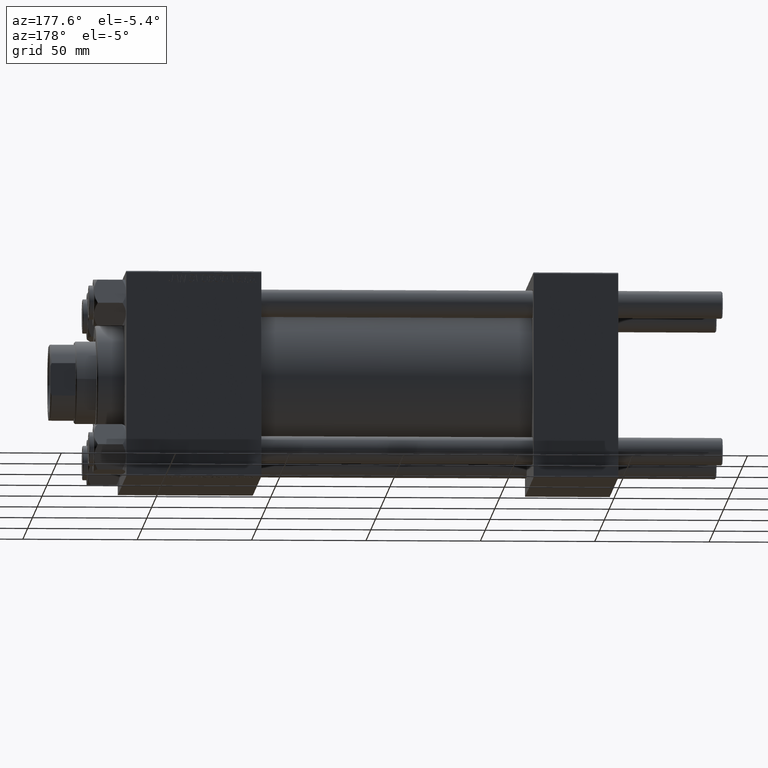
[diagram: clean part render]
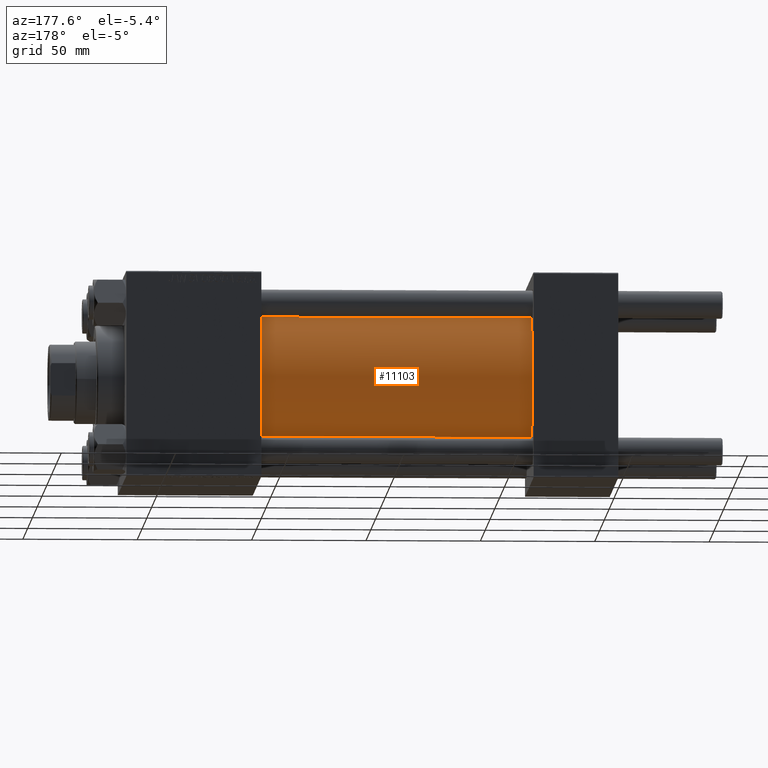
[diagram: same view with one face highlighted and labeled with its STEP entity id]
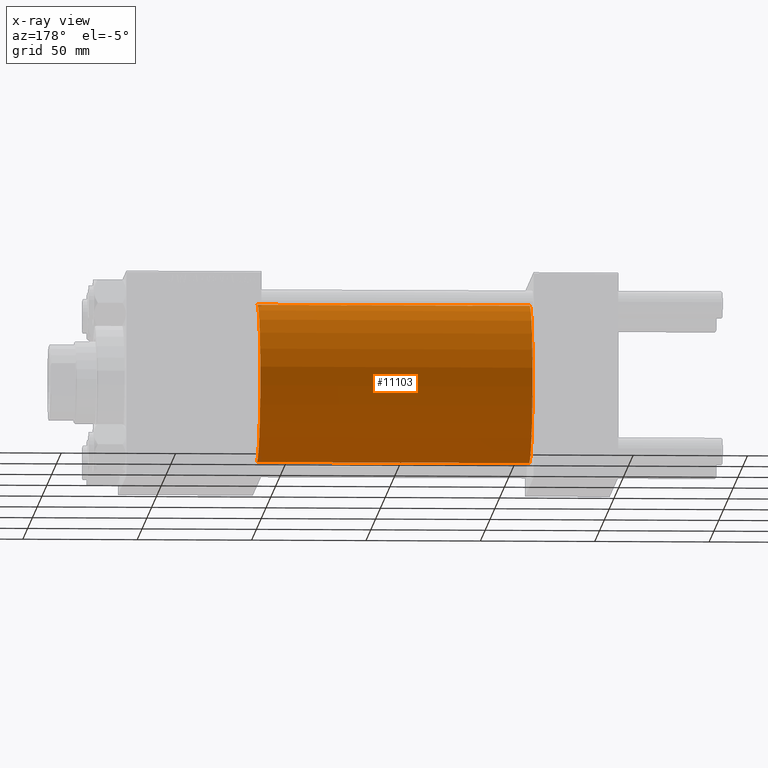
[diagram: x-ray of the same camera — body ghosted, the highlighted face saturated]
A machine part, auxiliary view. The second image highlights one B-rep face of the part: STEP entity #11103.
The next image is the same camera in x-ray: the body ghosted, the highlighted face saturated — about 0% of this face is hidden behind the body in this view.
In plain terms, the highlighted cylindrical surface (partial cylindrical patch) has radius 34.5 mm, axis along (-1, -0, -0).
Its self-contained STEP definition (entity closure, byte-faithful):
#2770 = AXIS2_PLACEMENT_3D ( 'NONE', #38319, #8511, #3724 ) ;
#3724 = DIRECTION ( 'NONE',  ( 0.000000000000000000, 0.000000000000000000, 1.000000000000000000 ) ) ;
#5119 = AXIS2_PLACEMENT_3D ( 'NONE', #25801, #7110, #6113 ) ;
#5187 = VERTEX_POINT ( 'NONE', #31446 ) ;
#5496 = DIRECTION ( 'NONE',  ( 0.000000000000000000, 0.000000000000000000, 1.000000000000000000 ) ) ;
#6113 = DIRECTION ( 'NONE',  ( 0.000000000000000000, 0.000000000000000000, -1.000000000000000000 ) ) ;
#7110 = DIRECTION ( 'NONE',  ( 1.000000000000000000, 0.000000000000000000, 0.000000000000000000 ) ) ;
#8511 = DIRECTION ( 'NONE',  ( -1.000000000000000000, -0.000000000000000000, -0.000000000000000000 ) ) ;
#9045 = CARTESIAN_POINT ( 'NONE',  ( 37.00000000000000711, 0.000000000000000000, 0.000000000000000000 ) ) ;
#9278 = ORIENTED_EDGE ( 'NONE', *, *, #47092, .F. ) ;
#9612 = VERTEX_POINT ( 'NONE', #36764 ) ;
#10615 = CARTESIAN_POINT ( 'NONE',  ( 156.0000000000000000, 4.225031457058367344E-15, -34.49999999999999289 ) ) ;
#11103 = ADVANCED_FACE ( 'NONE', ( #31243 ), #27448, .T. ) ;
#20627 = ORIENTED_EDGE ( 'NONE', *, *, #37800, .F. ) ;
#20991 = DIRECTION ( 'NONE',  ( -1.000000000000000000, -0.000000000000000000, -0.000000000000000000 ) ) ;
#21928 = CARTESIAN_POINT ( 'NONE',  ( 156.0000000000000000, 4.225031457058367344E-15, -34.49999999999999289 ) ) ;
#22329 = VERTEX_POINT ( 'NONE', #10615 ) ;
#24193 = DIRECTION ( 'NONE',  ( 1.000000000000000000, -0.000000000000000000, 0.000000000000000000 ) ) ;
#24526 = AXIS2_PLACEMENT_3D ( 'NONE', #9045, #24193, #5496 ) ;
#25266 = LINE ( 'NONE', #29047, #42524 ) ;
#25801 = CARTESIAN_POINT ( 'NONE',  ( 156.0000000000000000, 0.000000000000000000, 0.000000000000000000 ) ) ;
#27448 = CYLINDRICAL_SURFACE ( 'NONE', #2770, 34.49999999999999289 ) ;
#28532 = VECTOR ( 'NONE', #48960, 1000.000000000000000 ) ;
#29047 = CARTESIAN_POINT ( 'NONE',  ( 156.0000000000000000, 0.000000000000000000, 34.49999999999999289 ) ) ;
#30268 = ORIENTED_EDGE ( 'NONE', *, *, #34314, .T. ) ;
#30956 = VERTEX_POINT ( 'NONE', #45672 ) ;
#31243 = FACE_OUTER_BOUND ( 'NONE', #43287, .T. ) ;
#31446 = CARTESIAN_POINT ( 'NONE',  ( 37.00000000000000711, 0.000000000000000000, 34.49999999999999289 ) ) ;
#34314 = EDGE_CURVE ( 'NONE', #22329, #30956, #48705, .T. ) ;
#36764 = CARTESIAN_POINT ( 'NONE',  ( 156.0000000000000000, 0.000000000000000000, 34.49999999999999289 ) ) ;
#37400 = CIRCLE ( 'NONE', #5119, 34.49999999999999289 ) ;
#37800 = EDGE_CURVE ( 'NONE', #22329, #9612, #37400, .T. ) ;
#38319 = CARTESIAN_POINT ( 'NONE',  ( 156.0000000000000000, 0.000000000000000000, 0.000000000000000000 ) ) ;
#38707 = EDGE_CURVE ( 'NONE', #30956, #5187, #46313, .T. ) ;
#42524 = VECTOR ( 'NONE', #20991, 1000.000000000000000 ) ;
#43287 = EDGE_LOOP ( 'NONE', ( #20627, #30268, #49314, #9278 ) ) ;
#45672 = CARTESIAN_POINT ( 'NONE',  ( 37.00000000000000711, 4.225031457058367344E-15, -34.49999999999999289 ) ) ;
#46313 = CIRCLE ( 'NONE', #24526, 34.49999999999999289 ) ;
#47092 = EDGE_CURVE ( 'NONE', #9612, #5187, #25266, .T. ) ;
#48705 = LINE ( 'NONE', #21928, #28532 ) ;
#48960 = DIRECTION ( 'NONE',  ( -1.000000000000000000, -0.000000000000000000, -0.000000000000000000 ) ) ;
#49314 = ORIENTED_EDGE ( 'NONE', *, *, #38707, .T. ) ;